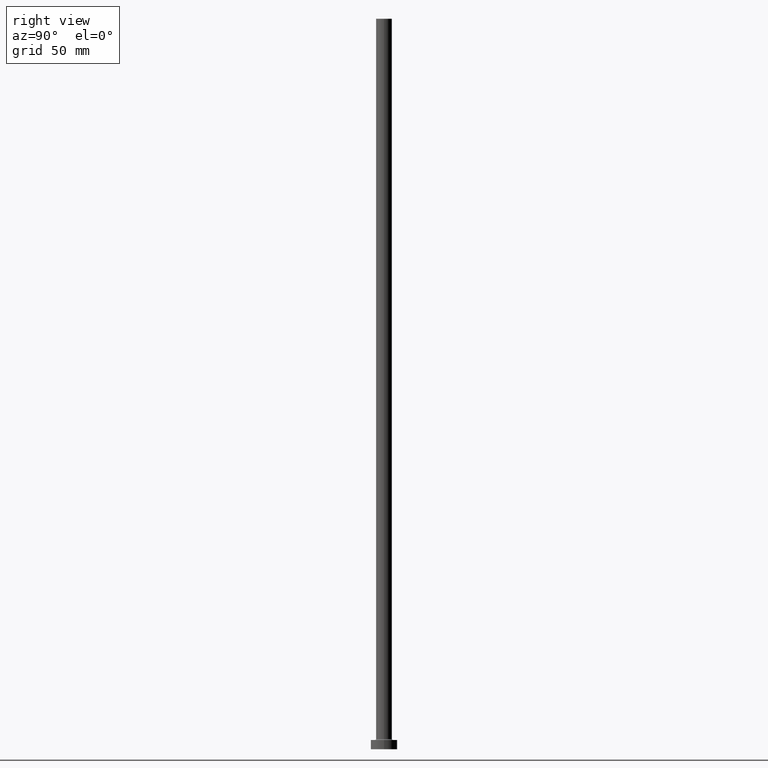
[diagram: clean part render]
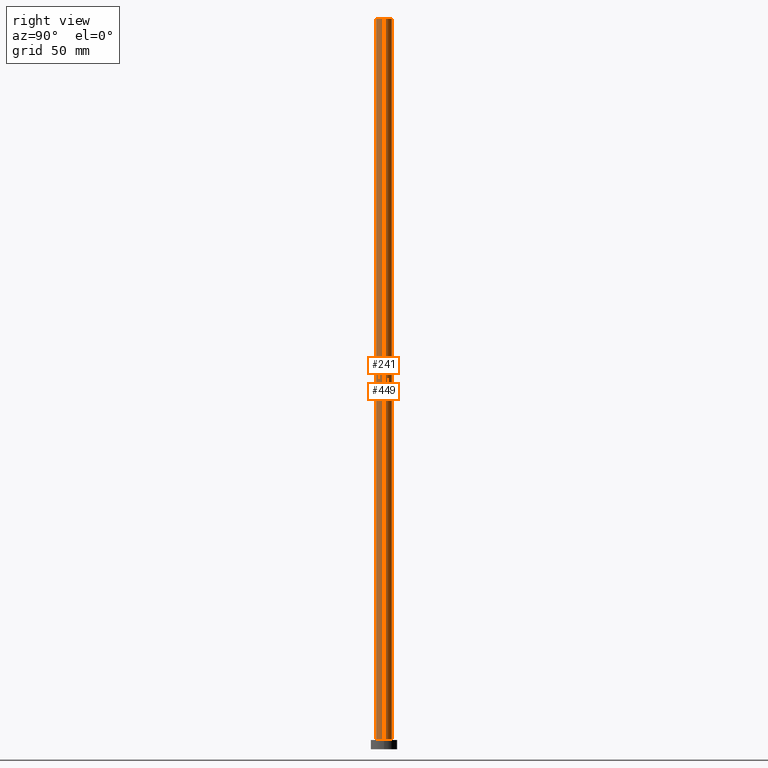
[diagram: same view with one multi-face feature highlighted, each face labeled with its STEP entity id]
A machine part, right view. The highlighted faces form ONE feature: a constant-radius fillet chain: 2 tangent blend faces with common blend radius 6 mm. The faces share edges in the B-rep.
Their STEP definitions:
[1] entity #241 (Cylinder):
#12 = CARTESIAN_POINT ( 'NONE',  ( 6.000000000000000888, 7.347880794884120722E-16, 7.700000000000040146 ) ) ;
#31 = DIRECTION ( 'NONE',  ( 0.000000000000000000, 0.000000000000000000, 1.000000000000000000 ) ) ;
#66 = DIRECTION ( 'NONE',  ( 1.000000000000000000, 0.000000000000000000, 0.000000000000000000 ) ) ;
#77 = DIRECTION ( 'NONE',  ( -0.000000000000000000, -0.000000000000000000, -1.000000000000000000 ) ) ;
#120 = VECTOR ( 'NONE', #189, 1000.000000000000000 ) ;
#135 = VERTEX_POINT ( 'NONE', #141 ) ;
#141 = CARTESIAN_POINT ( 'NONE',  ( -6.000000000000000888, 0.000000000000000000, 7.700000000000040146 ) ) ;
#147 = CARTESIAN_POINT ( 'NONE',  ( 0.000000000000000000, 0.000000000000000000, 7.700000000000040146 ) ) ;
#149 = EDGE_CURVE ( 'NONE', #416, #135, #323, .T. ) ;
#150 = ORIENTED_EDGE ( 'NONE', *, *, #175, .F. ) ;
#155 = DIRECTION ( 'NONE',  ( 0.000000000000000000, 0.000000000000000000, 1.000000000000000000 ) ) ;
#161 = ORIENTED_EDGE ( 'NONE', *, *, #240, .T. ) ;
#175 = EDGE_CURVE ( 'NONE', #424, #458, #440, .T. ) ;
#179 = CARTESIAN_POINT ( 'NONE',  ( -6.000000000000000888, 0.000000000000000000, 550.0000000000000000 ) ) ;
#185 = CARTESIAN_POINT ( 'NONE',  ( 6.000000000000000888, 7.347880794884120722E-16, 550.0000000000000000 ) ) ;
#189 = DIRECTION ( 'NONE',  ( -0.000000000000000000, -0.000000000000000000, -1.000000000000000000 ) ) ;
#197 = AXIS2_PLACEMENT_3D ( 'NONE', #444, #77, #427 ) ;
#216 = CARTESIAN_POINT ( 'NONE',  ( 6.000000000000000888, 7.347880794884120722E-16, 550.0000000000000000 ) ) ;
#222 = CARTESIAN_POINT ( 'NONE',  ( -6.000000000000000888, 0.000000000000000000, 550.0000000000000000 ) ) ;
#240 = EDGE_CURVE ( 'NONE', #135, #458, #242, .T. ) ;
#241 = ADVANCED_FACE ( 'NONE', ( #304 ), #403, .T. ) ;
#242 = CIRCLE ( 'NONE', #366, 6.000000000000000888 ) ;
#247 = EDGE_LOOP ( 'NONE', ( #150, #420, #373, #161 ) ) ;
#259 = VECTOR ( 'NONE', #331, 1000.000000000000000 ) ;
#299 = AXIS2_PLACEMENT_3D ( 'NONE', #429, #31, #66 ) ;
#304 = FACE_OUTER_BOUND ( 'NONE', #247, .T. ) ;
#323 = LINE ( 'NONE', #222, #259 ) ;
#331 = DIRECTION ( 'NONE',  ( -0.000000000000000000, -0.000000000000000000, -1.000000000000000000 ) ) ;
#348 = CIRCLE ( 'NONE', #299, 6.000000000000000888 ) ;
#366 = AXIS2_PLACEMENT_3D ( 'NONE', #147, #155, #438 ) ;
#373 = ORIENTED_EDGE ( 'NONE', *, *, #149, .T. ) ;
#395 = EDGE_CURVE ( 'NONE', #416, #424, #348, .T. ) ;
#403 = CYLINDRICAL_SURFACE ( 'NONE', #197, 6.000000000000000888 ) ;
#416 = VERTEX_POINT ( 'NONE', #179 ) ;
#420 = ORIENTED_EDGE ( 'NONE', *, *, #395, .F. ) ;
#424 = VERTEX_POINT ( 'NONE', #216 ) ;
#427 = DIRECTION ( 'NONE',  ( -1.000000000000000000, 0.000000000000000000, 0.000000000000000000 ) ) ;
#429 = CARTESIAN_POINT ( 'NONE',  ( 0.000000000000000000, 0.000000000000000000, 550.0000000000000000 ) ) ;
#438 = DIRECTION ( 'NONE',  ( 1.000000000000000000, 0.000000000000000000, 0.000000000000000000 ) ) ;
#440 = LINE ( 'NONE', #185, #120 ) ;
#444 = CARTESIAN_POINT ( 'NONE',  ( 0.000000000000000000, 0.000000000000000000, 550.0000000000000000 ) ) ;
#458 = VERTEX_POINT ( 'NONE', #12 ) ;
[2] entity #449 (Cylinder):
#12 = CARTESIAN_POINT ( 'NONE',  ( 6.000000000000000888, 7.347880794884120722E-16, 7.700000000000040146 ) ) ;
#15 = EDGE_CURVE ( 'NONE', #458, #135, #229, .T. ) ;
#21 = DIRECTION ( 'NONE',  ( 0.000000000000000000, 0.000000000000000000, 1.000000000000000000 ) ) ;
#59 = DIRECTION ( 'NONE',  ( 1.000000000000000000, 0.000000000000000000, 0.000000000000000000 ) ) ;
#61 = CIRCLE ( 'NONE', #436, 6.000000000000000888 ) ;
#75 = DIRECTION ( 'NONE',  ( -1.000000000000000000, 0.000000000000000000, 0.000000000000000000 ) ) ;
#96 = ORIENTED_EDGE ( 'NONE', *, *, #162, .F. ) ;
#120 = VECTOR ( 'NONE', #189, 1000.000000000000000 ) ;
#130 = AXIS2_PLACEMENT_3D ( 'NONE', #227, #261, #75 ) ;
#135 = VERTEX_POINT ( 'NONE', #141 ) ;
#141 = CARTESIAN_POINT ( 'NONE',  ( -6.000000000000000888, 0.000000000000000000, 7.700000000000040146 ) ) ;
#149 = EDGE_CURVE ( 'NONE', #416, #135, #323, .T. ) ;
#162 = EDGE_CURVE ( 'NONE', #424, #416, #61, .T. ) ;
#175 = EDGE_CURVE ( 'NONE', #424, #458, #440, .T. ) ;
#177 = FACE_OUTER_BOUND ( 'NONE', #248, .T. ) ;
#179 = CARTESIAN_POINT ( 'NONE',  ( -6.000000000000000888, 0.000000000000000000, 550.0000000000000000 ) ) ;
#185 = CARTESIAN_POINT ( 'NONE',  ( 6.000000000000000888, 7.347880794884120722E-16, 550.0000000000000000 ) ) ;
#188 = DIRECTION ( 'NONE',  ( 0.000000000000000000, 0.000000000000000000, 1.000000000000000000 ) ) ;
#189 = DIRECTION ( 'NONE',  ( -0.000000000000000000, -0.000000000000000000, -1.000000000000000000 ) ) ;
#216 = CARTESIAN_POINT ( 'NONE',  ( 6.000000000000000888, 7.347880794884120722E-16, 550.0000000000000000 ) ) ;
#222 = CARTESIAN_POINT ( 'NONE',  ( -6.000000000000000888, 0.000000000000000000, 550.0000000000000000 ) ) ;
#227 = CARTESIAN_POINT ( 'NONE',  ( 0.000000000000000000, 0.000000000000000000, 550.0000000000000000 ) ) ;
#229 = CIRCLE ( 'NONE', #407, 6.000000000000000888 ) ;
#248 = EDGE_LOOP ( 'NONE', ( #96, #287, #277, #367 ) ) ;
#259 = VECTOR ( 'NONE', #331, 1000.000000000000000 ) ;
#261 = DIRECTION ( 'NONE',  ( -0.000000000000000000, -0.000000000000000000, -1.000000000000000000 ) ) ;
#277 = ORIENTED_EDGE ( 'NONE', *, *, #15, .T. ) ;
#287 = ORIENTED_EDGE ( 'NONE', *, *, #175, .T. ) ;
#289 = CYLINDRICAL_SURFACE ( 'NONE', #130, 6.000000000000000888 ) ;
#296 = CARTESIAN_POINT ( 'NONE',  ( 0.000000000000000000, 0.000000000000000000, 550.0000000000000000 ) ) ;
#309 = CARTESIAN_POINT ( 'NONE',  ( 0.000000000000000000, 0.000000000000000000, 7.700000000000040146 ) ) ;
#323 = LINE ( 'NONE', #222, #259 ) ;
#331 = DIRECTION ( 'NONE',  ( -0.000000000000000000, -0.000000000000000000, -1.000000000000000000 ) ) ;
#367 = ORIENTED_EDGE ( 'NONE', *, *, #149, .F. ) ;
#407 = AXIS2_PLACEMENT_3D ( 'NONE', #309, #21, #59 ) ;
#416 = VERTEX_POINT ( 'NONE', #179 ) ;
#424 = VERTEX_POINT ( 'NONE', #216 ) ;
#436 = AXIS2_PLACEMENT_3D ( 'NONE', #296, #188, #443 ) ;
#440 = LINE ( 'NONE', #185, #120 ) ;
#443 = DIRECTION ( 'NONE',  ( 1.000000000000000000, 0.000000000000000000, 0.000000000000000000 ) ) ;
#449 = ADVANCED_FACE ( 'NONE', ( #177 ), #289, .T. ) ;
#458 = VERTEX_POINT ( 'NONE', #12 ) ;